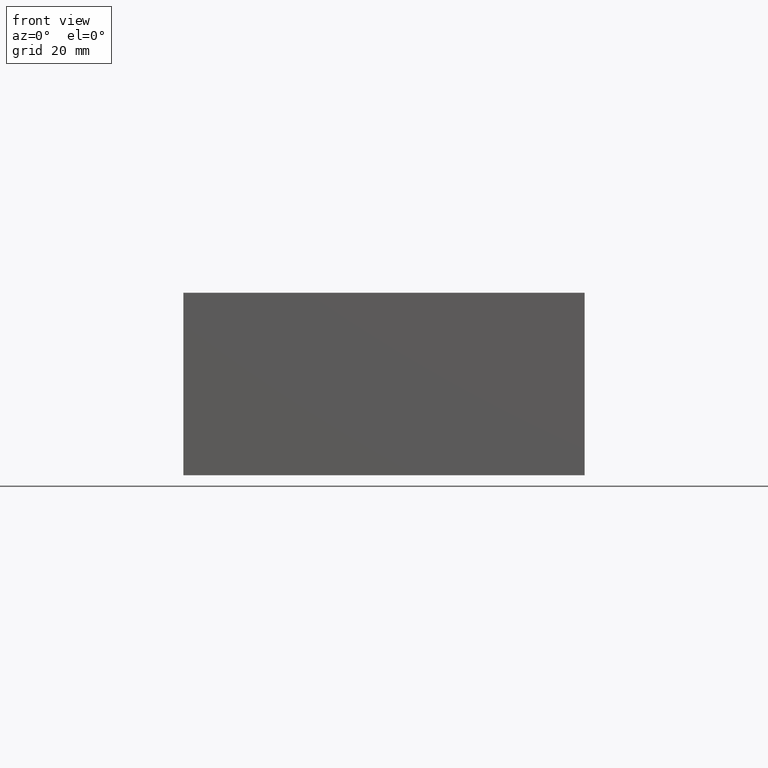
[diagram: clean part render]
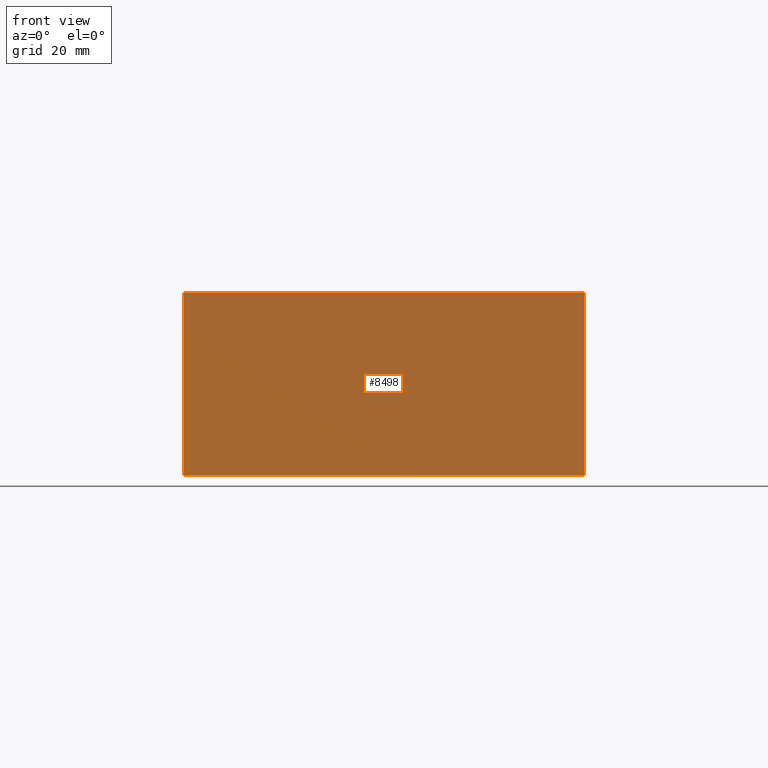
[diagram: same view with one face highlighted and labeled with its STEP entity id]
A machine part, front view. The second image highlights one B-rep face of the part: STEP entity #8498.
In plain terms, the highlighted planar face has unit normal (0, -1, 0).
Its self-contained STEP definition (entity closure, byte-faithful):
#923=FACE_OUTER_BOUND('',#1389,.T.);
#1389=EDGE_LOOP('',(#7380,#7381,#7382,#7383));
#1851=LINE('',#12982,#2725);
#2281=LINE('',#14246,#3155);
#2286=LINE('',#14255,#3160);
#2287=LINE('',#14256,#3161);
#2725=VECTOR('',#9665,10.);
#3155=VECTOR('',#10715,10.);
#3160=VECTOR('',#10726,10.);
#3161=VECTOR('',#10727,10.);
#3558=VERTEX_POINT('',#12975);
#3561=VERTEX_POINT('',#12980);
#3956=VERTEX_POINT('',#14243);
#3957=VERTEX_POINT('',#14245);
#4556=EDGE_CURVE('',#3558,#3561,#1851,.T.);
#5111=EDGE_CURVE('',#3956,#3957,#2281,.T.);
#5116=EDGE_CURVE('',#3956,#3558,#2286,.T.);
#5117=EDGE_CURVE('',#3957,#3561,#2287,.T.);
#7380=ORIENTED_EDGE('',*,*,#5116,.T.);
#7381=ORIENTED_EDGE('',*,*,#4556,.T.);
#7382=ORIENTED_EDGE('',*,*,#5117,.F.);
#7383=ORIENTED_EDGE('',*,*,#5111,.F.);
#7720=PLANE('',#8959);
#8498=ADVANCED_FACE('',(#923),#7720,.T.);
#8959=AXIS2_PLACEMENT_3D('',#14254,#10724,#10725);
#9665=DIRECTION('',(0.,0.,1.));
#10715=DIRECTION('',(0.,0.,1.));
#10724=DIRECTION('center_axis',(0.,-1.,0.));
#10725=DIRECTION('ref_axis',(1.,0.,0.));
#10726=DIRECTION('',(1.,0.,0.));
#10727=DIRECTION('',(1.,0.,0.));
#12975=CARTESIAN_POINT('',(69.85,0.,0.));
#12980=CARTESIAN_POINT('',(69.85,0.,31.75));
#12982=CARTESIAN_POINT('',(69.85,0.,0.));
#14243=CARTESIAN_POINT('',(0.,0.,0.));
#14245=CARTESIAN_POINT('',(0.,0.,31.75));
#14246=CARTESIAN_POINT('',(0.,0.,0.));
#14254=CARTESIAN_POINT('Origin',(0.,0.,0.));
#14255=CARTESIAN_POINT('',(0.,0.,0.));
#14256=CARTESIAN_POINT('',(0.,0.,31.75));